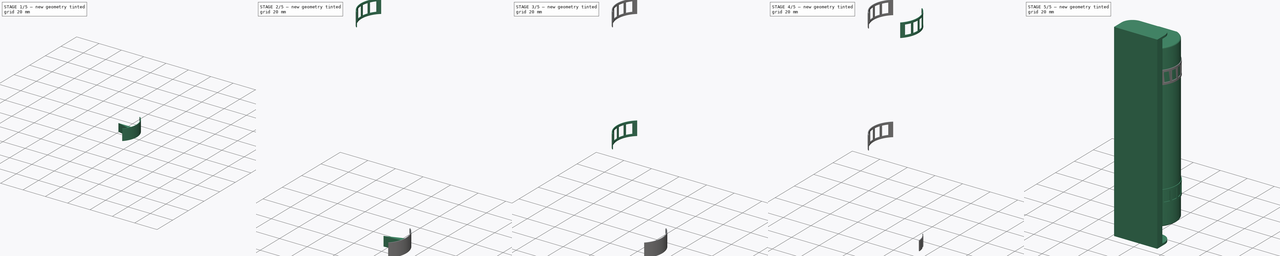
[diagram: build sequence overview — one tinted view per stage of 5, left to right]
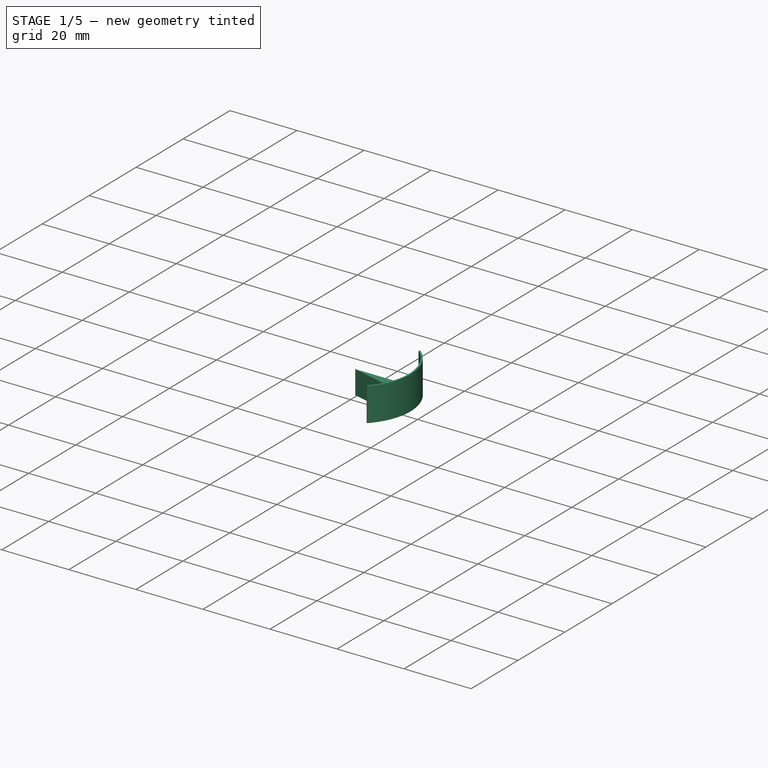
[diagram: stage 1 of 5 — iso view after this stage's code; geometry added in this stage tinted green]
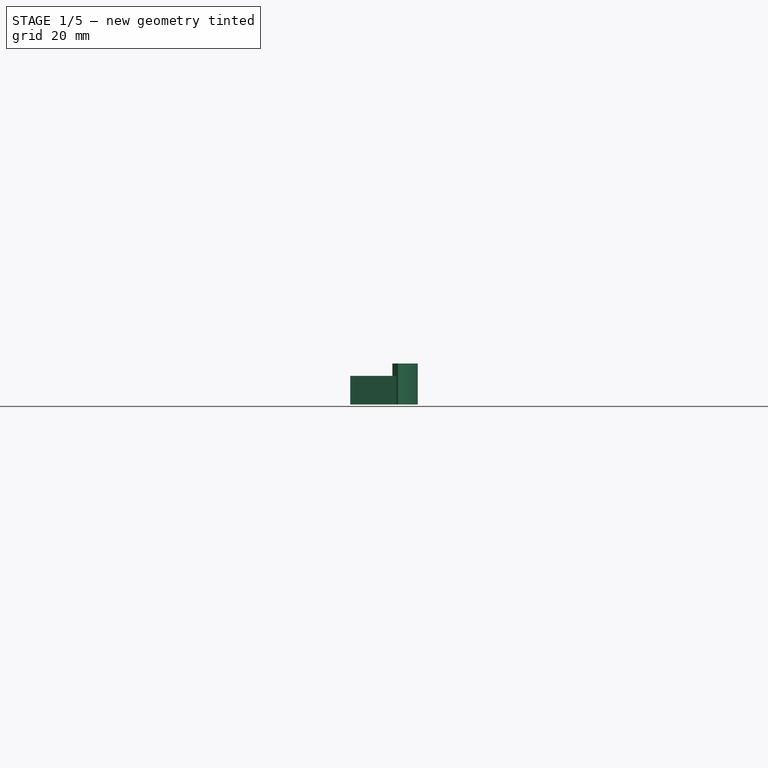
[diagram: stage 1 of 5 — front view after this stage's code; geometry added in this stage tinted green]
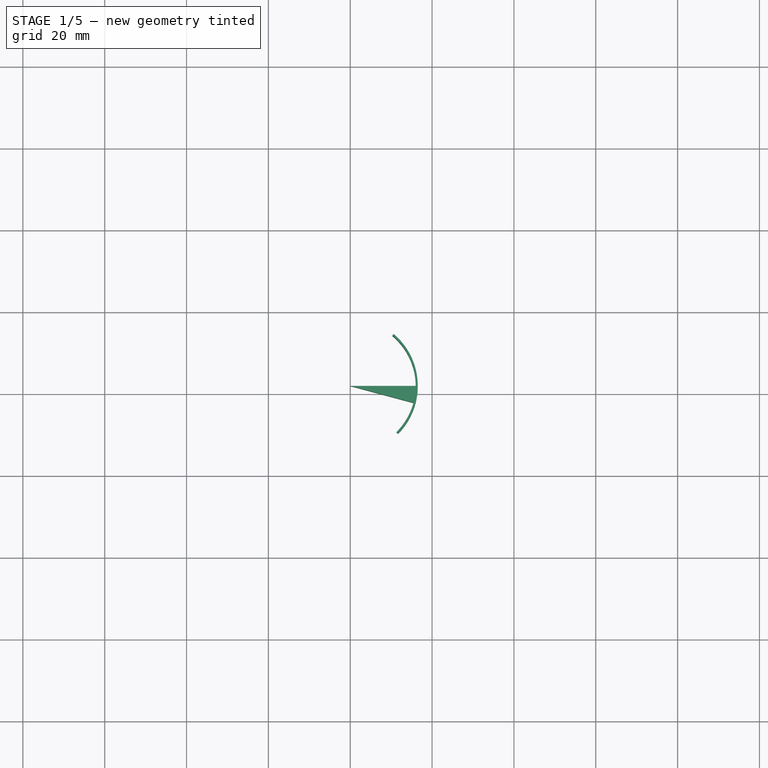
[diagram: stage 1 of 5 — top view after this stage's code; geometry added in this stage tinted green]
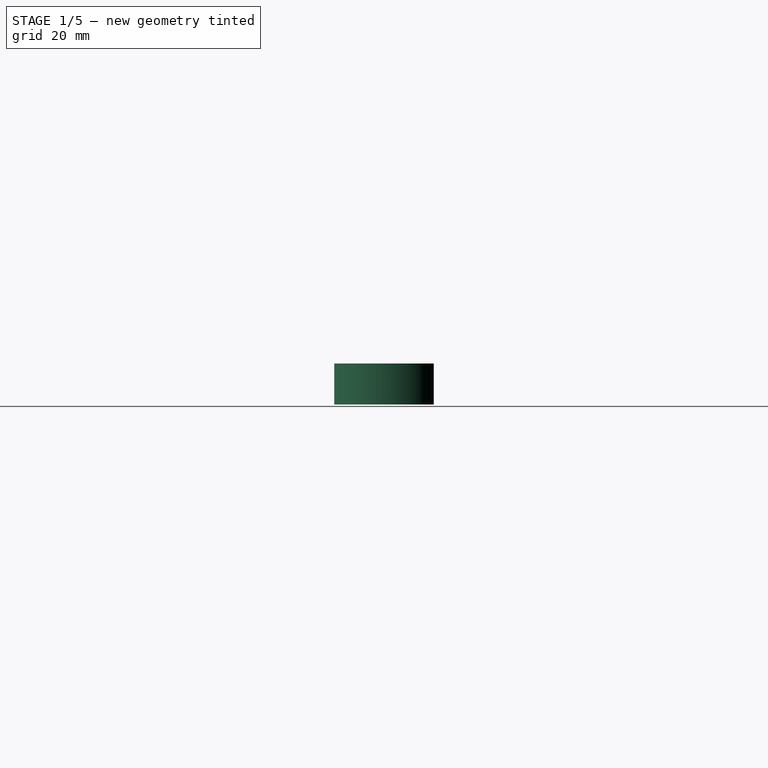
[diagram: stage 1 of 5 — right view after this stage's code; geometry added in this stage tinted green]
FCSTD DOCUMENT  (FreeCAD 0.18R16146 (Git))
Label: oil-tanker v1
License: All rights reserved
LicenseURL: http://en.wikipedia.org/wiki/All_rights_reserved
objects: Part::Cylinder×40, Part::Cut×24, PartDesign::Fillet×10, Sketcher::SketchObject×9, Part::MultiFuse×5, PartDesign::Pad×4, PartDesign::Body×2, PartDesign::FeatureBase×2, PartDesign::Pocket×1, Part::Part2DObjectPython×1, Part::Extrusion×1
note: 104 computed .brp shape members not serialized (recipe doc carries the construction recipe); baked Part::Feature solids carry a one-line shape summary decoded from their .brp

FEATURE [Part::Cylinder] Cylinder030  label="Cylinder-inner015"
  Angle = 95
  AttacherType = Attacher::AttachEngine3D
  Height = 10
  Placement = pos=(0,2,-50) rot=(0,0,-1;0.785398rad)
  Radius = 16
FEATURE [Part::Cylinder] Cylinder031  label="Cylinder-outer015"
  Angle = 15
  AttacherType = Attacher::AttachEngine3D
  Height = 7
  Placement = pos=(0,2,-50) rot=(0,0,1;0.087266rad)
  Radius = 16.5
FEATURE [Part::Cylinder] Cylinder032  label="Cylinder-inner016"
  Angle = 15
  AttacherType = Attacher::AttachEngine3D
  Height = 7
  Placement = pos=(0,2,-50) rot=(0,0,1;0.436332rad)
  Radius = 16
FEATURE [Part::Cylinder] Cylinder033  label="Cylinder-inner017"
  Angle = 15
  AttacherType = Attacher::AttachEngine3D
  Height = 7
  Placement = pos=(0,2,-50) rot=(0,0,1;0.087266rad)
  Radius = 16
FEATURE [Part::Cylinder] Cylinder034  label="Cylinder-outer016"
  Angle = 15
  AttacherType = Attacher::AttachEngine3D
  Height = 7
  Placement = pos=(0,2,-50) rot=(0,0,1;0.436332rad)
  Radius = 16.5
FEATURE [Part::Cylinder] Cylinder035  label="Cylinder-inner018"
  Angle = 15
  AttacherType = Attacher::AttachEngine3D
  Height = 7
  Placement = pos=(0,2,-50) rot=(0,0,-1;0.610865rad)
  Radius = 16
FEATURE [Part::Cylinder] Cylinder036  label="Cylinder-outer017"
  Angle = 15
  AttacherType = Attacher::AttachEngine3D
  Height = 7
  Placement = pos=(0,2,-50) rot=(0,0,-1;0.261799rad)
  Radius = 16.5
FEATURE [Part::Cylinder] Cylinder037  label="Cylinder-outer018"
  Angle = 95
  AttacherType = Attacher::AttachEngine3D
  Height = 10
  Placement = pos=(0,2,-50) rot=(0,0,-1;0.785398rad)
  Radius = 16.5
FEATURE [Part::Cylinder] Cylinder038  label="Cylinder-outer019"
  Angle = 15
  AttacherType = Attacher::AttachEngine3D
  Height = 7
  Placement = pos=(0,2,-50) rot=(0,0,-1;0.610865rad)
  Radius = 16.5
FEATURE [Part::Cylinder] Cylinder039  label="Cylinder-inner019"
  Angle = 15
  AttacherType = Attacher::AttachEngine3D
  Height = 7
  Placement = pos=(0,2,-50) rot=(0,0,-1;0.261799rad)
  Radius = 16
FEATURE [Part::Cut] Cut019  label="Cut-ladder-cut013"
  Base = -> Cylinder038
  Placement = pos=(0,0,1.5) rot=(0,0,1;0rad)
  Tool = -> Cylinder035
FEATURE [Part::Cut] Cut021  label="Cut-ladder-cut014"
  Base = -> Cylinder031
  Placement = pos=(0,0,1.5) rot=(0,0,1;0rad)
  Tool = -> Cylinder033
FEATURE [Part::Cut] Cut022  label="Cut-ladder-cut015"
  Base = -> Cylinder034
  Placement = pos=(0,0,1.5) rot=(0,0,1;0rad)
  Tool = -> Cylinder032
FEATURE [Part::Cut] Cut023  label="Cut-ladder-outer003"
  Base = -> Cylinder037
  Tool = -> Cylinder030
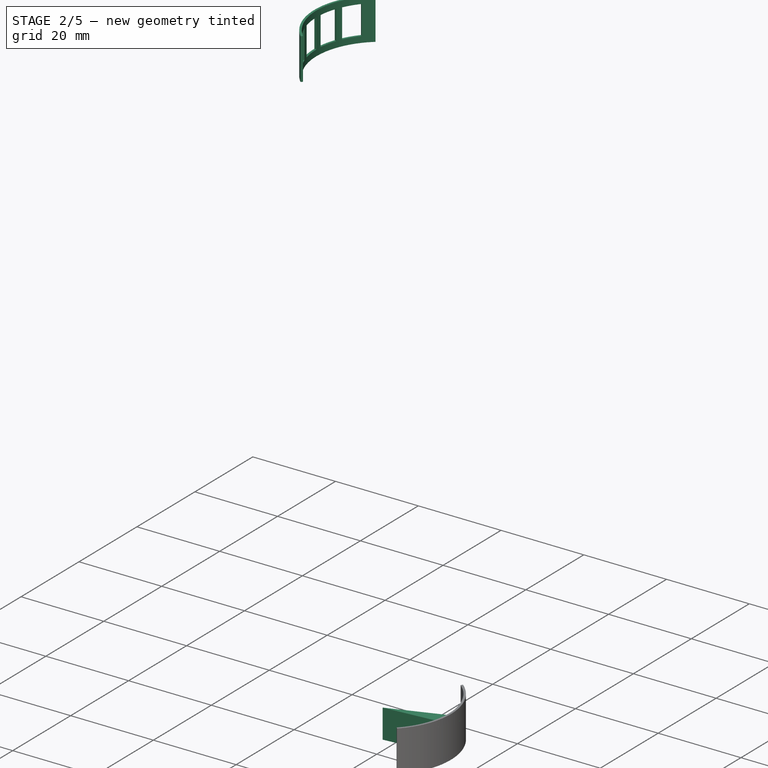
[diagram: stage 2 of 5 — iso view after this stage's code; geometry added in this stage tinted green]
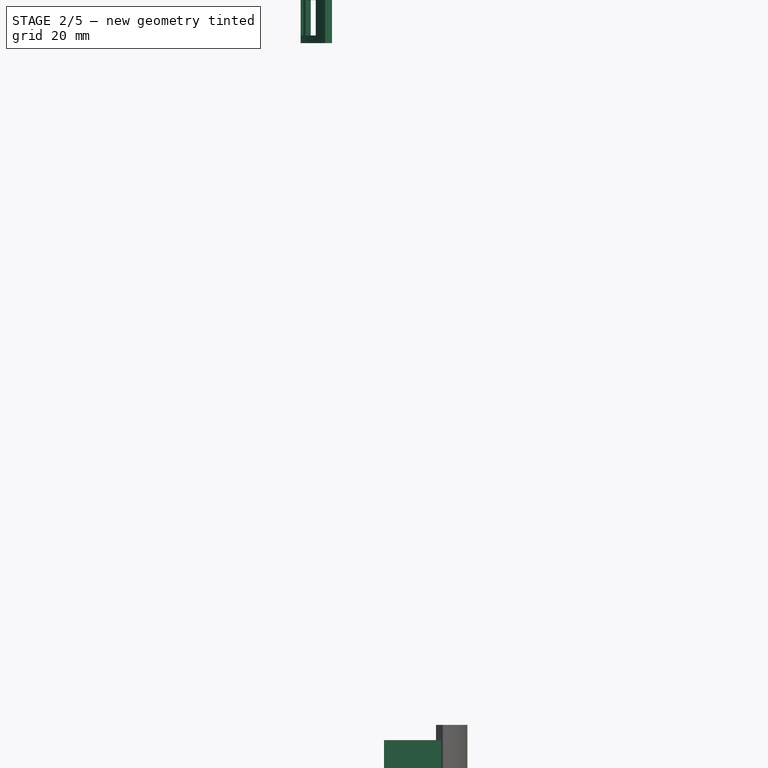
[diagram: stage 2 of 5 — front view after this stage's code; geometry added in this stage tinted green]
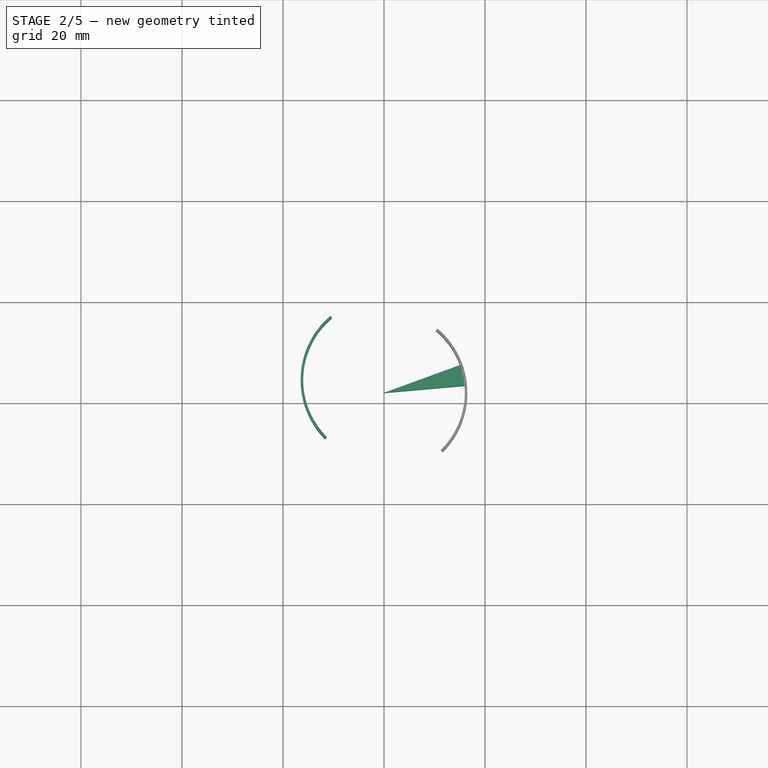
[diagram: stage 2 of 5 — top view after this stage's code; geometry added in this stage tinted green]
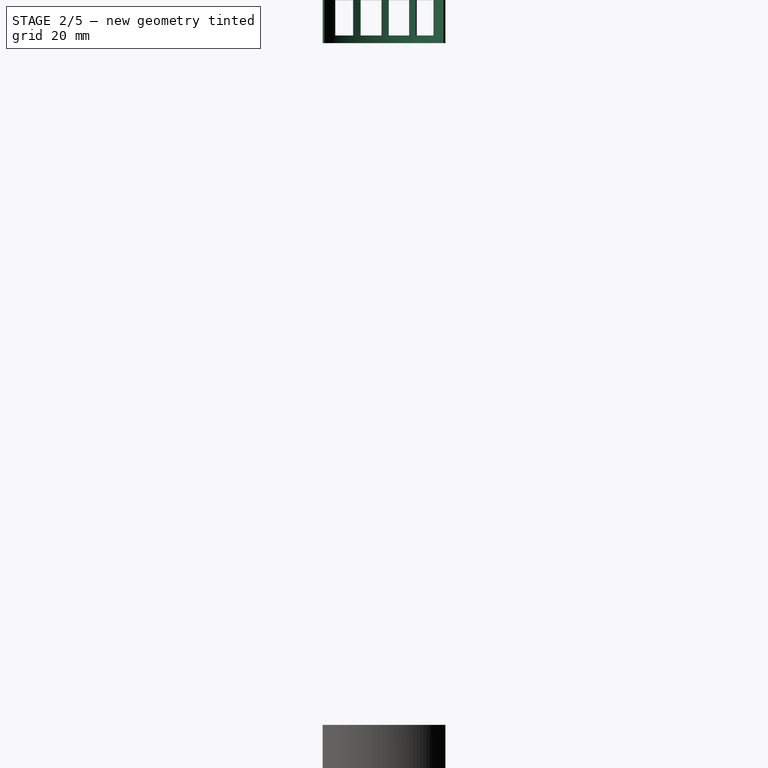
[diagram: stage 2 of 5 — right view after this stage's code; geometry added in this stage tinted green]
FEATURE [Part::Cylinder] Cylinder022  label="Cylinder-inner011"
  Angle = 15
  AttacherType = Attacher::AttachEngine3D
  Height = 7
  Placement = pos=(0,2,-50) rot=(0,0,1;0.087266rad)
  Radius = 16
FEATURE [Part::Cylinder] Cylinder023  label="Cylinder-inner012"
  Angle = 95
  AttacherType = Attacher::AttachEngine3D
  Height = 10
  Placement = pos=(0,2,-50) rot=(0,0,-1;0.785398rad)
  Radius = 16
FEATURE [Part::Cylinder] Cylinder024  label="Cylinder-outer011"
  Angle = 15
  AttacherType = Attacher::AttachEngine3D
  Height = 7
  Placement = pos=(0,2,-50) rot=(0,0,1;0.436332rad)
  Radius = 16.5
FEATURE [Part::Cylinder] Cylinder025  label="Cylinder-inner013"
  Angle = 15
  AttacherType = Attacher::AttachEngine3D
  Height = 7
  Placement = pos=(0,2,-50) rot=(0,0,-1;0.261799rad)
  Radius = 16
FEATURE [Part::Cylinder] Cylinder026  label="Cylinder-outer012"
  Angle = 95
  AttacherType = Attacher::AttachEngine3D
  Height = 10
  Placement = pos=(0,2,-50) rot=(0,0,-1;0.785398rad)
  Radius = 16.5
FEATURE [Part::Cylinder] Cylinder027  label="Cylinder-outer013"
  Angle = 15
  AttacherType = Attacher::AttachEngine3D
  Height = 7
  Placement = pos=(0,2,-50) rot=(0,0,-1;0.261799rad)
  Radius = 16.5
FEATURE [Part::Cylinder] Cylinder028  label="Cylinder-outer014"
  Angle = 15
  AttacherType = Attacher::AttachEngine3D
  Height = 7
  Placement = pos=(0,2,-50) rot=(0,0,1;0.087266rad)
  Radius = 16.5
FEATURE [Part::Cylinder] Cylinder029  label="Cylinder-inner014"
  Angle = 15
  AttacherType = Attacher::AttachEngine3D
  Height = 7
  Placement = pos=(0,2,-50) rot=(0,0,1;0.436332rad)
  Radius = 16
FEATURE [Part::Cut] Cut014  label="Cut-ladder-cut010"
  Base = -> Cylinder024
  Placement = pos=(0,0,1.5) rot=(0,0,1;0rad)
  Tool = -> Cylinder029
FEATURE [Part::Cut] Cut015  label="Cut-ladder-cut011"
  Base = -> Cylinder027
  Placement = pos=(0,0,1.5) rot=(0,0,1;0rad)
  Tool = -> Cylinder025
FEATURE [Part::Cut] Cut016  label="Cut-ladder-outer002"
  Base = -> Cylinder026
  Tool = -> Cylinder023
FEATURE [Part::Cut] Cut018  label="Cut-ladder-cut012"
  Base = -> Cylinder036
  Placement = pos=(0,0,1.5) rot=(0,0,1;0rad)
  Tool = -> Cylinder039
FEATURE [Part::MultiFuse] Fusion003  label="ladder-cut003"
  Shapes = -> [Cut019,Cut018,Cut021,Cut022]
FEATURE [Part::Cut] Cut020  label="ladder-Cut004"
  Base = -> Cut023
  Placement = pos=(0,0,55) rot=(0,1,0;3.14159rad)
  Tool = -> Fusion003
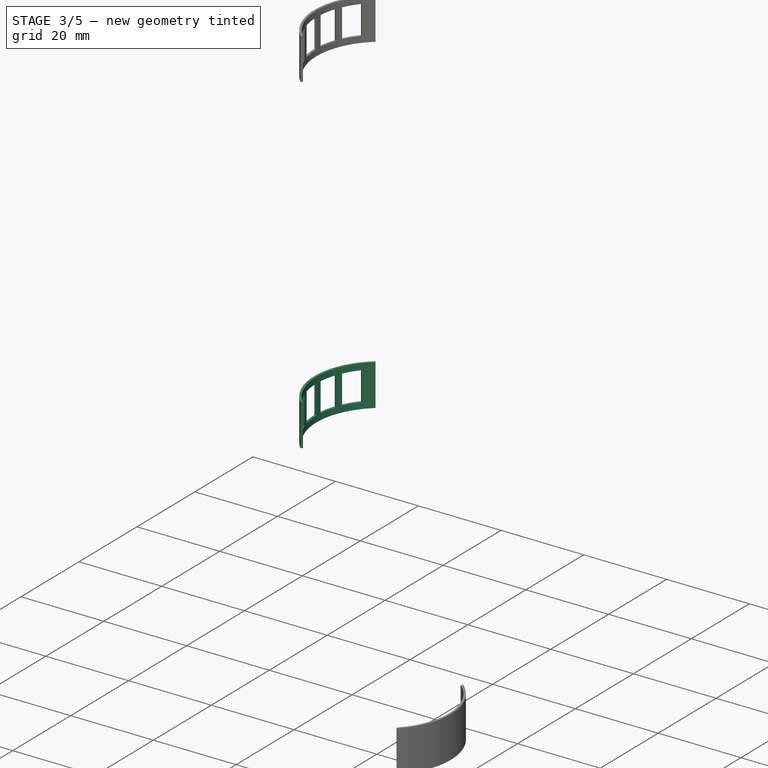
[diagram: stage 3 of 5 — iso view after this stage's code; geometry added in this stage tinted green]
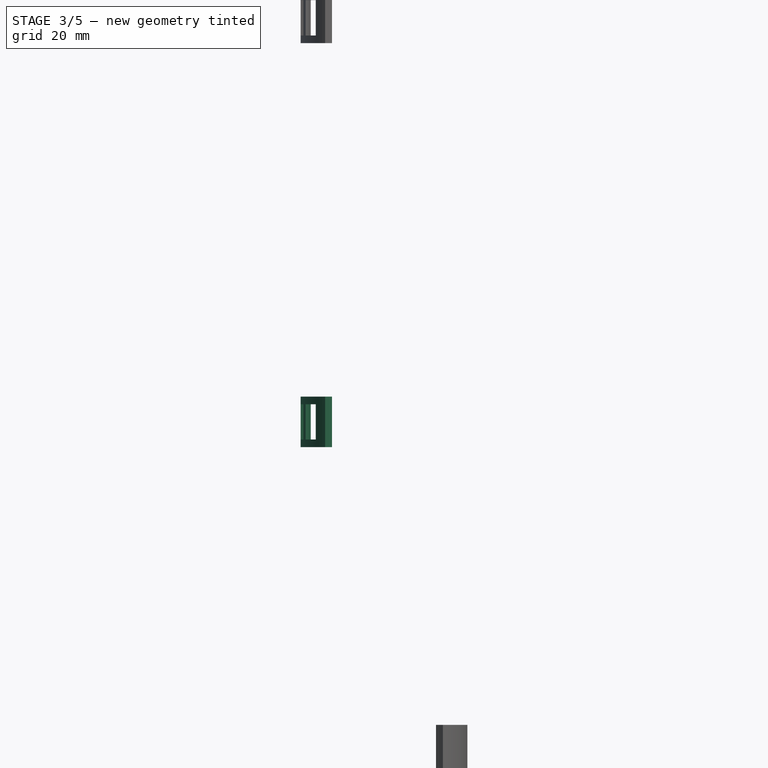
[diagram: stage 3 of 5 — front view after this stage's code; geometry added in this stage tinted green]
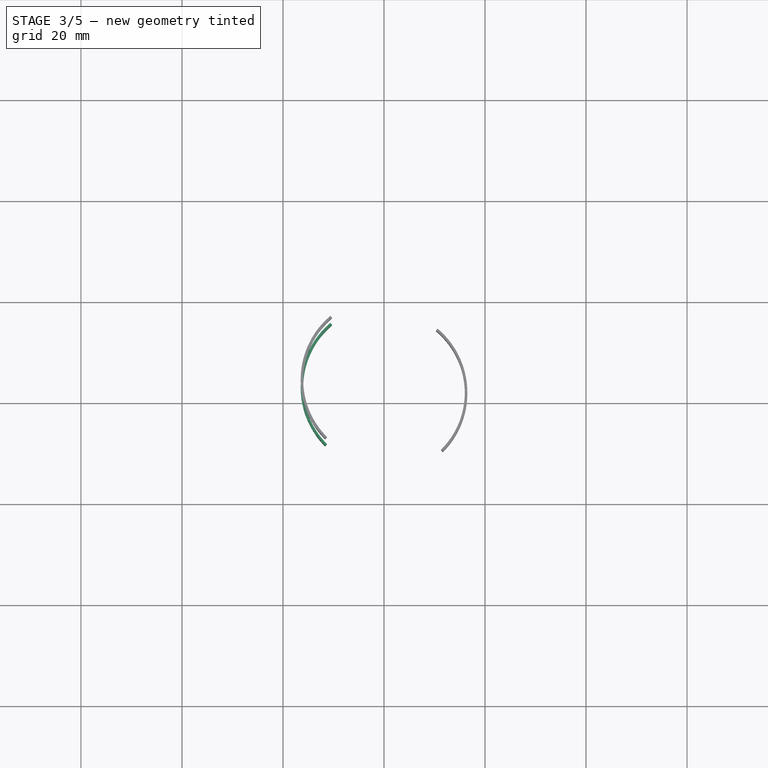
[diagram: stage 3 of 5 — top view after this stage's code; geometry added in this stage tinted green]
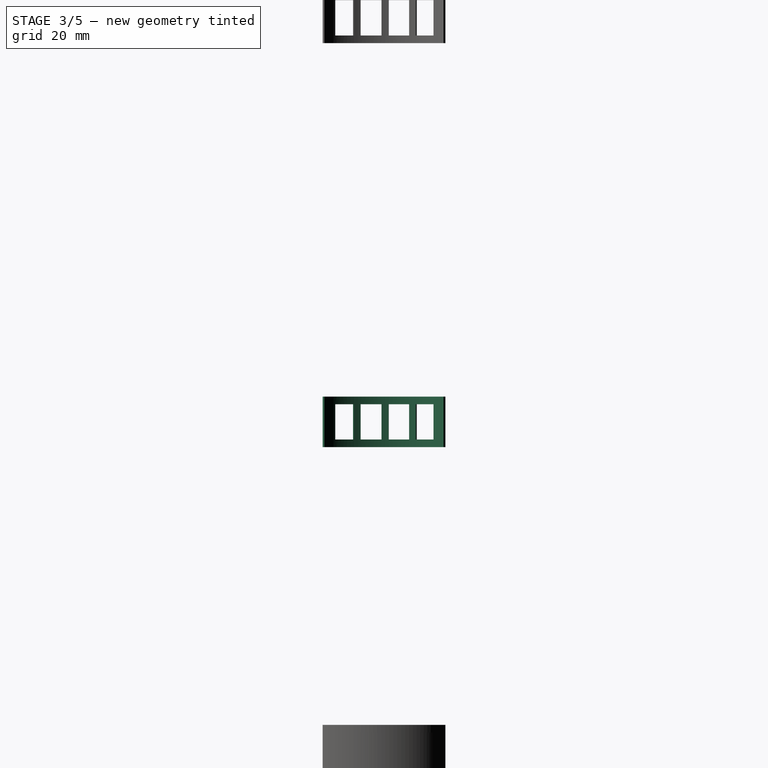
[diagram: stage 3 of 5 — right view after this stage's code; geometry added in this stage tinted green]
FEATURE [Part::Cylinder] Cylinder013  label="Cylinder-inner007"
  Angle = 95
  AttacherType = Attacher::AttachEngine3D
  Height = 10
  Placement = pos=(0,2,-50) rot=(0,0,-1;0.785398rad)
  Radius = 16
FEATURE [Part::Cylinder] Cylinder014  label="Cylinder-outer006"
  Angle = 15
  AttacherType = Attacher::AttachEngine3D
  Height = 7
  Placement = pos=(0,2,-50) rot=(0,0,1;0.436332rad)
  Radius = 16.5
FEATURE [Part::Cylinder] Cylinder015  label="Cylinder-inner008"
  Angle = 15
  AttacherType = Attacher::AttachEngine3D
  Height = 7
  Placement = pos=(0,2,-50) rot=(0,0,-1;0.261799rad)
  Radius = 16
FEATURE [Part::Cylinder] Cylinder016  label="Cylinder-outer007"
  Angle = 95
  AttacherType = Attacher::AttachEngine3D
  Height = 10
  Placement = pos=(0,2,-50) rot=(0,0,-1;0.785398rad)
  Radius = 16.5
FEATURE [Part::Cylinder] Cylinder017  label="Cylinder-outer008"
  Angle = 15
  AttacherType = Attacher::AttachEngine3D
  Height = 7
  Placement = pos=(0,2,-50) rot=(0,0,-1;0.261799rad)
  Radius = 16.5
FEATURE [Part::Cylinder] Cylinder019  label="Cylinder-inner009"
  Angle = 15
  AttacherType = Attacher::AttachEngine3D
  Height = 7
  Placement = pos=(0,2,-50) rot=(0,0,1;0.436332rad)
  Radius = 16
FEATURE [Part::Cut] Cut008  label="Cut-ladder-cut006"
  Base = -> Cylinder014
  Placement = pos=(0,0,1.5) rot=(0,0,1;0rad)
  Tool = -> Cylinder019
FEATURE [Part::Cut] Cut009  label="Cut-ladder-cut007"
  Base = -> Cylinder017
  Placement = pos=(0,0,1.5) rot=(0,0,1;0rad)
  Tool = -> Cylinder015
FEATURE [Part::Cut] Cut010  label="Cut-ladder-outer001"
  Base = -> Cylinder016
  Tool = -> Cylinder013
FEATURE [Part::Cylinder] Cylinder020  label="Cylinder-inner010"
  Angle = 15
  AttacherType = Attacher::AttachEngine3D
  Height = 7
  Placement = pos=(0,2,-50) rot=(0,0,-1;0.610865rad)
  Radius = 16
FEATURE [Part::Cylinder] Cylinder021  label="Cylinder-outer010"
  Angle = 15
  AttacherType = Attacher::AttachEngine3D
  Height = 7
  Placement = pos=(0,2,-50) rot=(0,0,-1;0.610865rad)
  Radius = 16.5
FEATURE [Part::Cut] Cut012  label="Cut-ladder-cut008"
  Base = -> Cylinder021
  Placement = pos=(0,0,1.5) rot=(0,0,1;0rad)
  Tool = -> Cylinder020
FEATURE [Part::Cut] Cut013  label="Cut-ladder-cut009"
  Base = -> Cylinder028
  Placement = pos=(0,0,1.5) rot=(0,0,1;0rad)
  Tool = -> Cylinder022
FEATURE [Part::MultiFuse] Fusion002  label="ladder-cut002"
  Shapes = -> [Cut012,Cut015,Cut013,Cut014]
FEATURE [Part::Cut] Cut017  label="ladder-Cut003"
  Base = -> Cut016
  Placement = pos=(0,0,-25) rot=(0,1,0;3.14159rad)
  Tool = -> Fusion002
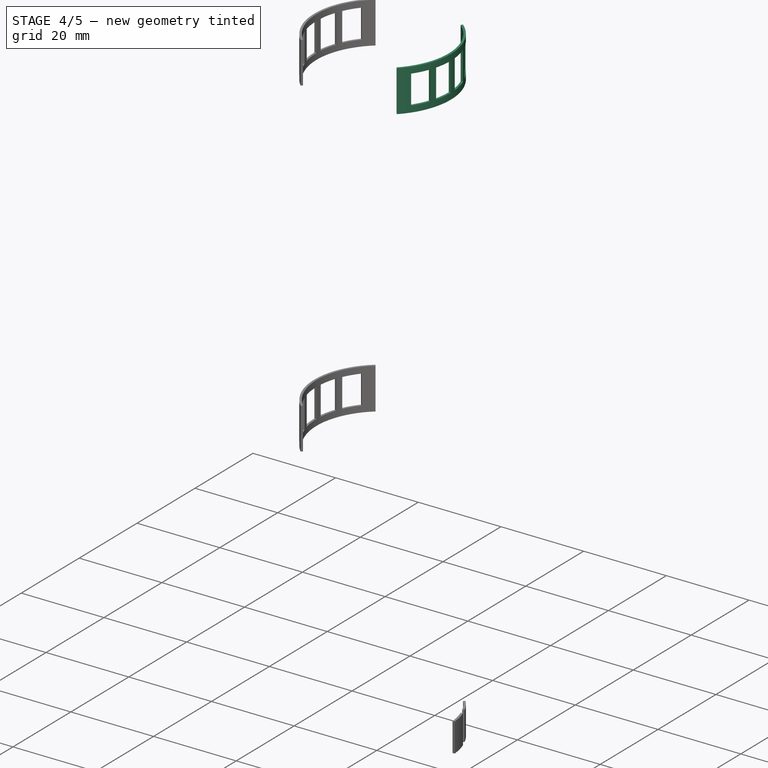
[diagram: stage 4 of 5 — iso view after this stage's code; geometry added in this stage tinted green]
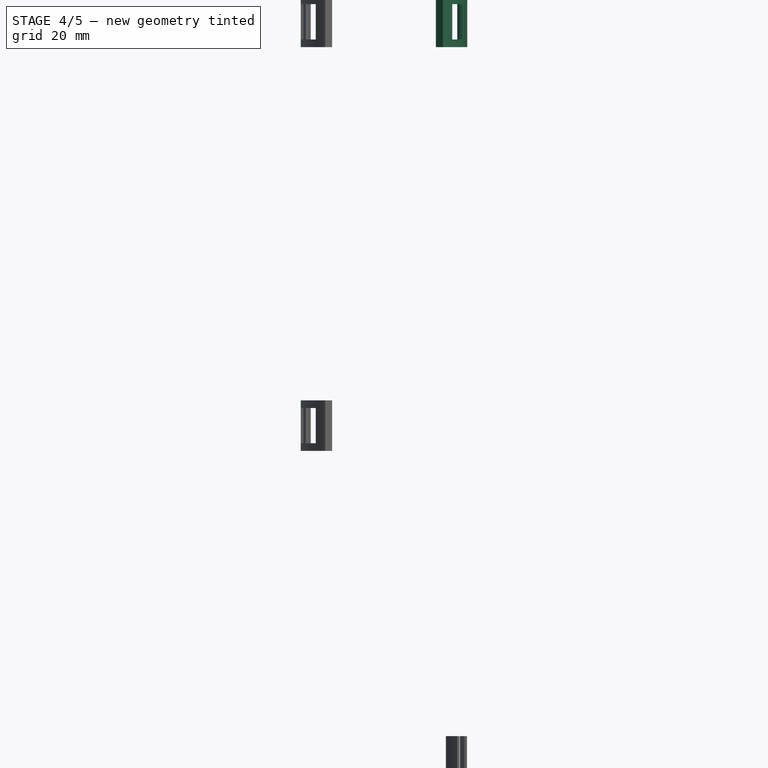
[diagram: stage 4 of 5 — front view after this stage's code; geometry added in this stage tinted green]
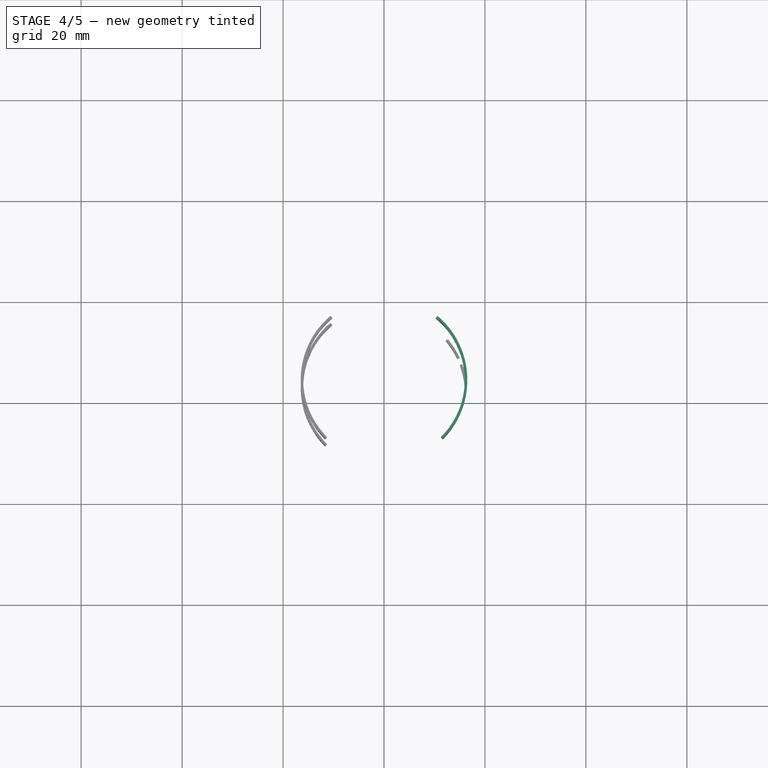
[diagram: stage 4 of 5 — top view after this stage's code; geometry added in this stage tinted green]
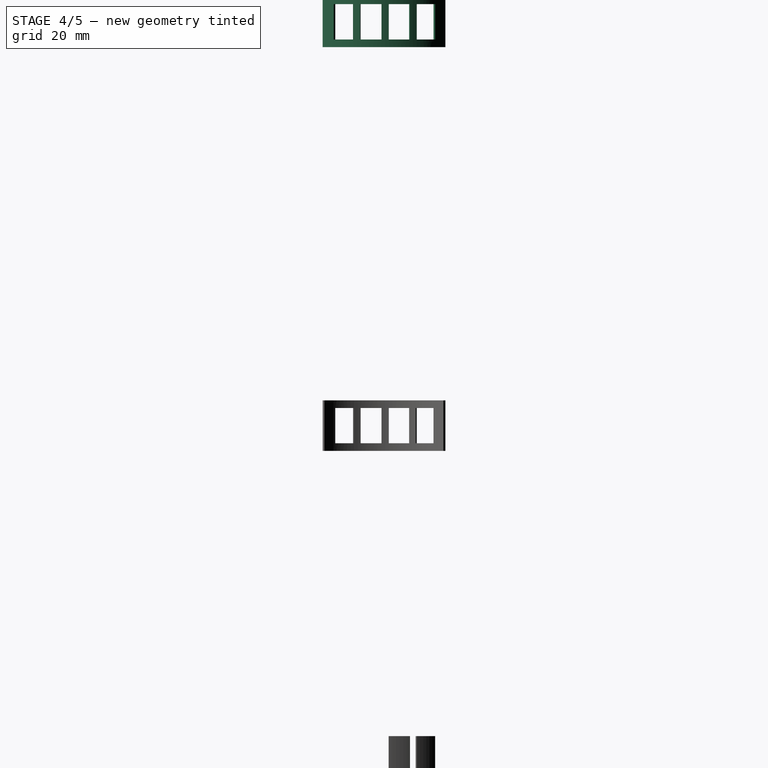
[diagram: stage 4 of 5 — right view after this stage's code; geometry added in this stage tinted green]
FEATURE [Part::Cylinder] Cylinder006  label="Cylinder-inner003"
  Angle = 15
  AttacherType = Attacher::AttachEngine3D
  Height = 7
  Placement = pos=(0,2,-50) rot=(0,0,-1;-0.087266rad)
  Radius = 16
FEATURE [Part::Cylinder] Cylinder007  label="Cylinder-outer003"
  Angle = 15
  AttacherType = Attacher::AttachEngine3D
  Height = 7
  Placement = pos=(0,2,-50) rot=(0,0,-1;-0.087266rad)
  Radius = 16.5
FEATURE [Part::Cut] Cut003  label="Cut-ladder-cut002"
  Base = -> Cylinder007
  Placement = pos=(0,0,1.5) rot=(0,0,1;0rad)
  Tool = -> Cylinder006
FEATURE [Part::Cylinder] Cylinder008  label="Cylinder-inner004"
  Angle = 15
  AttacherType = Attacher::AttachEngine3D
  Height = 7
  Placement = pos=(0,2,-50) rot=(0,0,1;0.436332rad)
  Radius = 16
FEATURE [Part::Cylinder] Cylinder009  label="Cylinder-outer004"
  Angle = 15
  AttacherType = Attacher::AttachEngine3D
  Height = 7
  Placement = pos=(0,2,-50) rot=(0,0,1;0.436332rad)
  Radius = 16.5
FEATURE [Part::Cut] Cut004  label="Cut-ladder-cut003"
  Base = -> Cylinder009
  Placement = pos=(0,0,1.5) rot=(0,0,1;0rad)
  Tool = -> Cylinder008
FEATURE [Part::Cylinder] Cylinder010  label="Cylinder-inner005"
  Angle = 15
  AttacherType = Attacher::AttachEngine3D
  Height = 7
  Placement = pos=(0,2,-50) rot=(0,0,-1;0.610865rad)
  Radius = 16
FEATURE [Part::Cylinder] Cylinder011  label="Cylinder-outer005"
  Angle = 15
  AttacherType = Attacher::AttachEngine3D
  Height = 7
  Placement = pos=(0,2,-50) rot=(0,0,-1;0.610865rad)
  Radius = 16.5
FEATURE [Part::Cylinder] Cylinder012  label="Cylinder-inner006"
  Angle = 15
  AttacherType = Attacher::AttachEngine3D
  Height = 7
  Placement = pos=(0,2,-50) rot=(0,0,1;0.087266rad)
  Radius = 16
FEATURE [Part::Cylinder] Cylinder018  label="Cylinder-outer009"
  Angle = 15
  AttacherType = Attacher::AttachEngine3D
  Height = 7
  Placement = pos=(0,2,-50) rot=(0,0,1;0.087266rad)
  Radius = 16.5
FEATURE [Part::Cut] Cut006  label="Cut-ladder-cut004"
  Base = -> Cylinder011
  Placement = pos=(0,0,1.5) rot=(0,0,1;0rad)
  Tool = -> Cylinder010
FEATURE [Part::Cut] Cut007  label="Cut-ladder-cut005"
  Base = -> Cylinder018
  Placement = pos=(0,0,1.5) rot=(0,0,1;0rad)
  Tool = -> Cylinder012
FEATURE [Part::MultiFuse] Fusion001  label="ladder-cut001"
  Shapes = -> [Cut006,Cut009,Cut007,Cut008]
FEATURE [Part::Cut] Cut011  label="ladder-Cut002"
  Base = -> Cut010
  Placement = pos=(0,0,145) rot=(0,0,1;0rad)
  Tool = -> Fusion001
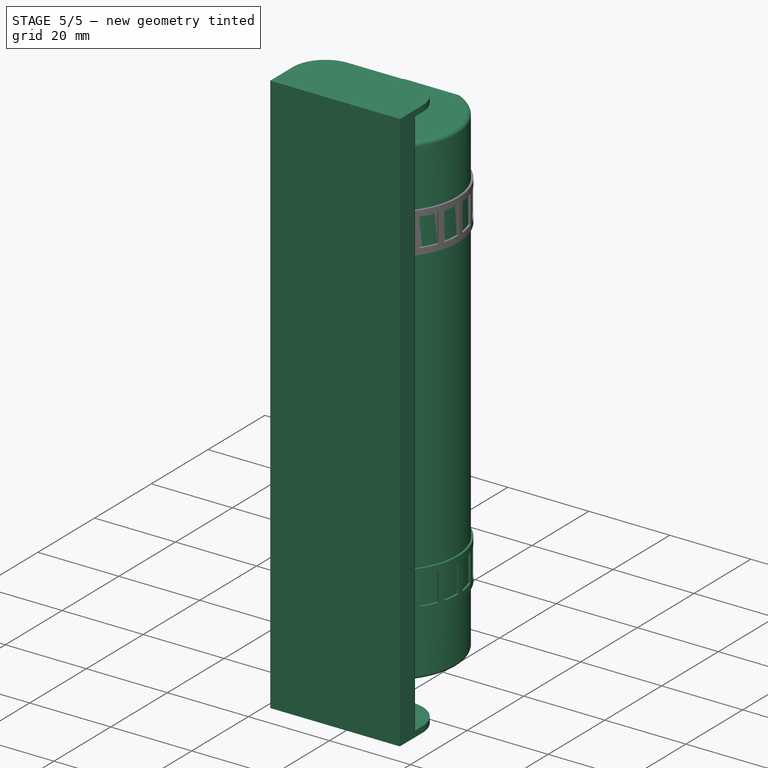
[diagram: stage 5 of 5 — iso view after this stage's code; geometry added in this stage tinted green]
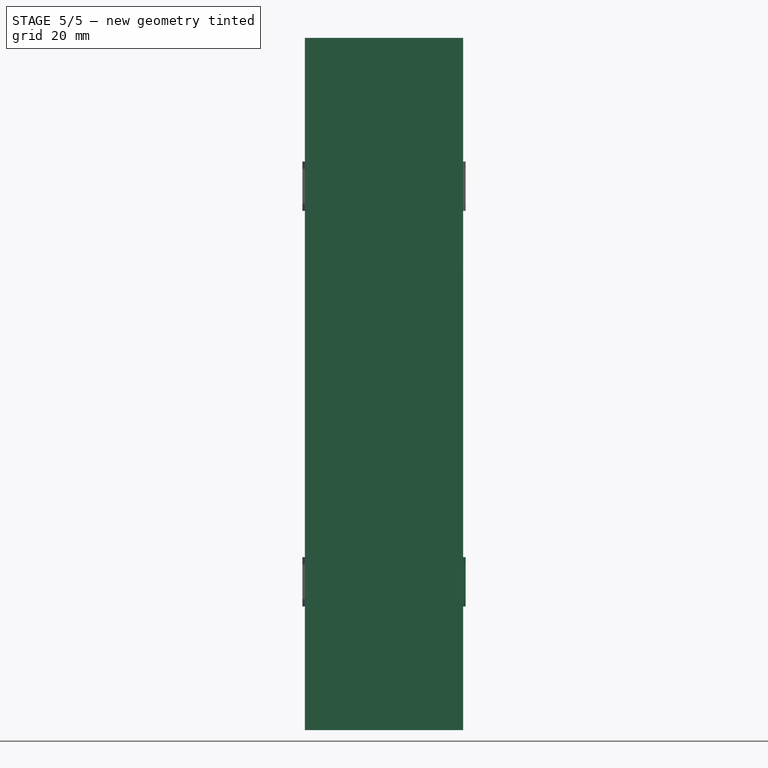
[diagram: stage 5 of 5 — front view after this stage's code; geometry added in this stage tinted green]
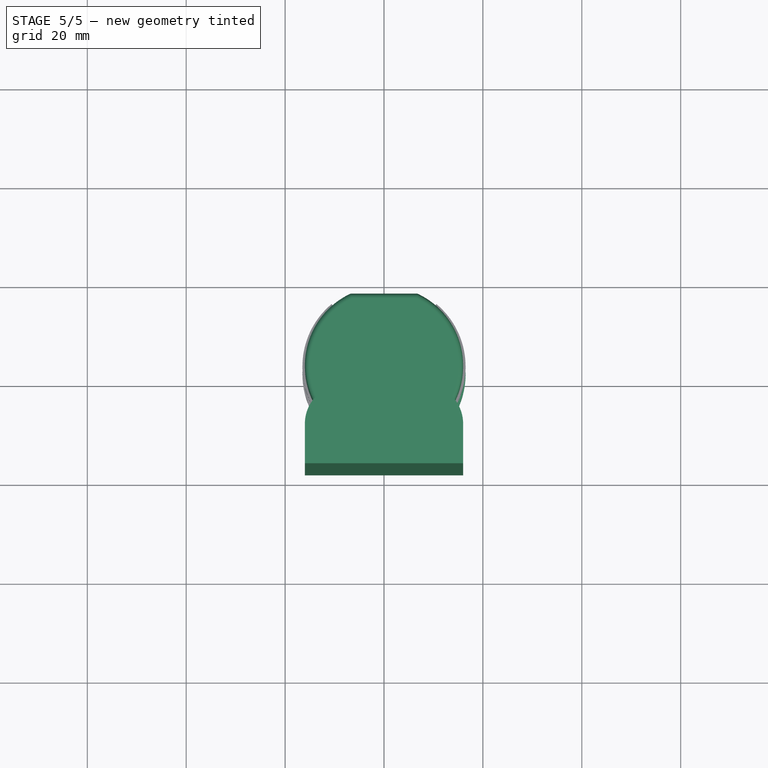
[diagram: stage 5 of 5 — top view after this stage's code; geometry added in this stage tinted green]
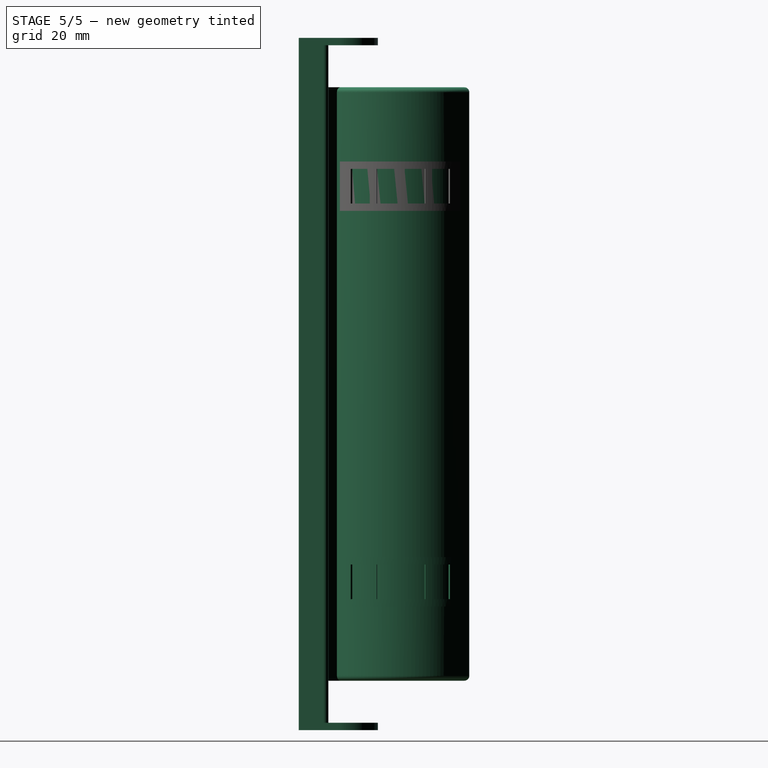
[diagram: stage 5 of 5 — right view after this stage's code; geometry added in this stage tinted green]
FEATURE [Sketcher::SketchObject] Sketch  label="Sketch-train-front-face"
  MapMode = 5
  Support = -> [XY_Plane]
  sketch-geometry (19):
    g0: LineSegment [constr] StartX=-16 StartY=18 StartZ=0 EndX=16 EndY=18 EndZ=0
    g1: LineSegment [constr] StartX=16 StartY=18 StartZ=0 EndX=16 EndY=-18 EndZ=0
    g2: LineSegment [constr] StartX=16 StartY=-18 StartZ=0 EndX=-16 EndY=-18 EndZ=0
    g3: LineSegment [constr] StartX=-16 StartY=-18 StartZ=0 EndX=-16 EndY=18 EndZ=0
    g4: LineSegment [constr] StartX=0 StartY=0 StartZ=0 EndX=0 EndY=-18 EndZ=0
    g5: LineSegment [constr] StartX=0 StartY=0 StartZ=0 EndX=16 EndY=0 EndZ=0
    g6: LineSegment [constr] StartX=0 StartY=0 StartZ=0 EndX=-16 EndY=0 EndZ=0
    g7: LineSegment [constr] StartX=0 StartY=0 StartZ=0 EndX=0 EndY=18 EndZ=0
    g8: ArcOfCircle CenterX=0 CenterY=2 CenterZ=0 NormalX=0 NormalY=0 NormalZ=1 AngleXU=0 Radius=16 StartAngle=5.40928 EndAngle=7.41775
    g9: LineSegment StartX=-16 StartY=-12 StartZ=0 EndX=-12 EndY=-12 EndZ=0
    g10: LineSegment StartX=16 StartY=-12 StartZ=0 EndX=16 EndY=-18 EndZ=0
    g11: LineSegment StartX=16 StartY=-18 StartZ=0 EndX=-16 EndY=-18 EndZ=0
    g12: LineSegment StartX=-16 StartY=-18 StartZ=0 EndX=-16 EndY=-12 EndZ=0
    g13: LineSegment StartX=12 StartY=-12 StartZ=0 EndX=16 EndY=-12 EndZ=0
    g14: LineSegment StartX=-6.76047 StartY=16.5016 StartZ=0 EndX=6.76047 EndY=16.5016 EndZ=0
    g15: ArcOfCircle CenterX=0 CenterY=2 CenterZ=0 NormalX=0 NormalY=0 NormalZ=1 AngleXU=0 Radius=16 StartAngle=2.00703 EndAngle=4.01549
    g16: GeomPoint X=-12 Y=-12 Z=0
    g17: LineSegment StartX=-10.2694 StartY=-10.2694 StartZ=0 EndX=-12 EndY=-12 EndZ=0
    g18: LineSegment StartX=10.2694 StartY=-10.2694 StartZ=0 EndX=12 EndY=-12 EndZ=0
  constraints (52):
    c: Coincident(g0,g1)
    c: Coincident(g1,g2)
    c: Coincident(g2,g3)
    c: Coincident(g3,g0)
    c: Symmetric(g0,g0,g-2)
    c: DistanceX(g0,g0) = 32
    c: DistanceY(g3,g3) = 36
    c: Symmetric(g0,g2,g-1)
    c: Symmetric(g2,g1,g-2)
    c: Coincident(g4,g5)
    c: Coincident(g4,g7)
    c: Coincident(g4,g6)
    c: Coincident(g4,g-1)
    c: Vertical(g4)
    c: Vertical(g7)
    c: Horizontal(g5)
    c: Horizontal(g6)
    c: DistanceY(g7,g7) = 18
    c: Equal(g7,g4)
    c: DistanceX(g5,g5) = 16
    c: Equal(g6,g5)
    c: Radius(g8) = 16
    c: PointOnObject(g8,g7)
    c: DistanceY(g-1,g8) = 2
    c: Coincident(g13,g10)
    c: Coincident(g10,g11)
    c: Coincident(g11,g12)
    c: Coincident(g12,g9)
    c: Horizontal(g9)
    c: Vertical(g10)
    c: Vertical(g12)
    c: Coincident(g10,g1)
    c: Coincident(g11,g2)
    c: DistanceY(g10,g10) = 6
    c: Tangent(g9,g13)
    c: Equal(g8,g15)
    c: Coincident(g8,g15)
    c: Coincident(g14,g8)
    c: Coincident(g14,g15)
    c: PointOnObject(g16,g9)
    c: DistanceX(g9,g16) = 4
    c: Coincident(g16,g17)
    c: Angle(g9,g17) = 0.785398
    c: DistanceX(g18,g10) = 4
    c: Coincident(g15,g17)
    c: PointOnObject(g9,g17)
    c: Coincident(g8,g18)
    c: PointOnObject(g13,g18)
    c: Angle(g13,g18) = 2.35619
    c: Equal(g17,g18)
    c: Distance(g8,g8) = 27
    c: Distance(g14,g15) = 27
FEATURE [Part::Cylinder] Cylinder  label="Cylinder-inner"
  Angle = 95
  AttacherType = Attacher::AttachEngine3D
  Height = 10
  Placement = pos=(0,2,-50) rot=(0,0,1;-0.785398rad)
  Radius = 16
FEATURE [Part::Cylinder] Cylinder001  label="Cylinder-outer"
  Angle = 95
  AttacherType = Attacher::AttachEngine3D
  Height = 10
  Placement = pos=(0,2,-50) rot=(0,0,1;-0.785398rad)
  Radius = 16.5
FEATURE [Part::Cut] Cut  label="Cut-ladder-outer"
  Base = -> Cylinder001
  Tool = -> Cylinder
FEATURE [Part::Cylinder] Cylinder002  label="Cylinder-inner001"
  Angle = 15
  AttacherType = Attacher::AttachEngine3D
  Height = 7
  Placement = pos=(0,2,-50) rot=(0,0,-1;0.610865rad)
  Radius = 16
FEATURE [Part::Cylinder] Cylinder003  label="Cylinder-outer001"
  Angle = 15
  AttacherType = Attacher::AttachEngine3D
  Height = 7
  Placement = pos=(0,2,-50) rot=(0,0,-1;0.610865rad)
  Radius = 16.5
FEATURE [Part::Cut] Cut001  label="Cut-ladder-cut"
  Base = -> Cylinder003
  Placement = pos=(0,0,1.5) rot=(0,0,1;0rad)
  Tool = -> Cylinder002
FEATURE [Part::Cylinder] Cylinder004  label="Cylinder-inner002"
  Angle = 15
  AttacherType = Attacher::AttachEngine3D
  Height = 7
  Placement = pos=(0,2,-50) rot=(0,0,-1;0.261799rad)
  Radius = 16
FEATURE [Part::Cylinder] Cylinder005  label="Cylinder-outer002"
  Angle = 15
  AttacherType = Attacher::AttachEngine3D
  Height = 7
  Placement = pos=(0,2,-50) rot=(0,0,-1;0.261799rad)
  Radius = 16.5
FEATURE [Part::Cut] Cut002  label="Cut-ladder-cut001"
  Base = -> Cylinder005
  Placement = pos=(0,0,1.5) rot=(0,0,1;0rad)
  Tool = -> Cylinder004
FEATURE [Part::MultiFuse] Fusion  label="ladder-cut"
  Shapes = -> [Cut001,Cut002,Cut003,Cut004]
FEATURE [Part::Cut] Cut005  label="ladder-Cut001"
  Base = -> Cut
  Placement = pos=(0,0,65) rot=(0,0,1;0rad)
  Tool = -> Fusion
FEATURE [PartDesign::Body] Body
  BaseFeature = -> Extrude
  Group = -> [BaseFeature,Sketch,Pad,Sketch001,Sketch002,Pad001,Pad002,Sketch003,Pad003,Sketch004,Fillet,Fillet001,Fillet002,Fillet003,Sketch005,Pocket,Fillet004,Fillet005,Fillet006,Fillet007,Fillet008,Fillet009,Sketch006,Sketch007,Sketch008]
  Origin = -> Origin
  Tip = -> Fillet009
FEATURE [PartDesign::Pad] Pad  label="Pad-main-body"
  BaseFeature = -> BaseFeature
  Length = 120
  Length2 = 100
  Profile = -> Sketch
  Type = 0
FEATURE [Sketcher::SketchObject] Sketch001  label="Sketch001-front-bottom-plate"
  ExternalGeometry = -> [Pad]
  MapMode = 5
  Placement = pos=(0,0,0) rot=(1,0,0;3.14159rad)
  Support = -> [Pad]
  sketch-geometry (4):
    g0: LineSegment StartX=-16 StartY=18 StartZ=0 EndX=16 EndY=18 EndZ=0
    g1: LineSegment StartX=16 StartY=18 StartZ=0 EndX=16 EndY=12 EndZ=0
    g2: LineSegment StartX=16 StartY=12 StartZ=0 EndX=-16 EndY=12 EndZ=0
    g3: LineSegment StartX=-16 StartY=12 StartZ=0 EndX=-16 EndY=18 EndZ=0
  constraints (8):
    c: Coincident(g0,g1)
    c: Coincident(g1,g2)
    c: Coincident(g2,g3)
    c: Coincident(g3,g0)
    c: Coincident(g0,g-3)
    c: Coincident(g1,g-4)
    c: Coincident(g2,g-5)
    c: Coincident(g0,g-6)
FEATURE [Sketcher::SketchObject] Sketch002  label="Sketch002-reverse-bottom-plate"
  ExternalGeometry = -> [Pad]
  MapMode = 5
  Placement = pos=(0,0,120) rot=(0,0,1;0rad)
  Support = -> [Pad]
  sketch-geometry (4):
    g0: LineSegment StartX=-16 StartY=-12 StartZ=0 EndX=16 EndY=-12 EndZ=0
    g1: LineSegment StartX=16 StartY=-12 StartZ=0 EndX=16 EndY=-18 EndZ=0
    g2: LineSegment StartX=16 StartY=-18 StartZ=0 EndX=-16 EndY=-18 EndZ=0
    g3: LineSegment StartX=-16 StartY=-18 StartZ=0 EndX=-16 EndY=-12 EndZ=0
  constraints (8):
    c: Coincident(g0,g1)
    c: Coincident(g1,g2)
    c: Coincident(g2,g3)
    c: Coincident(g3,g0)
    c: Coincident(g0,g-6)
    c: Coincident(g2,g-5)
    c: Coincident(g0,g-3)
    c: Coincident(g1,g-4)
FEATURE [PartDesign::Pad] Pad001  label="Pad001-front-ledge"
  BaseFeature = -> Pad
  Length = 15
  Length2 = 100
  Profile = -> Sketch001
  Type = 0
FEATURE [PartDesign::Pad] Pad002  label="Pad002-back-ledge"
  BaseFeature = -> Pad001
  Length = 15
  Length2 = 100
  Profile = -> Sketch002
  Type = 0
FEATURE [Sketcher::SketchObject] Sketch003
  ExternalGeometry = -> [Pad002]
  MapMode = 5
  Placement = pos=(0,-12,0) rot=(0,0.707107,0.707107;3.14159rad)
  Support = -> [Pad002]
  sketch-geometry (8):
    g0: LineSegment StartX=-16 StartY=135 StartZ=0 EndX=16 EndY=135 EndZ=0
    g1: LineSegment StartX=16 StartY=135 StartZ=0 EndX=16 EndY=133.5 EndZ=0
    g2: LineSegment StartX=16 StartY=133.5 StartZ=0 EndX=-16 EndY=133.5 EndZ=0
    g3: LineSegment StartX=-16 StartY=133.5 StartZ=0 EndX=-16 EndY=135 EndZ=0
    g4: LineSegment StartX=-16 StartY=-13.5 StartZ=0 EndX=16 EndY=-13.5 EndZ=0
    g5: LineSegment StartX=16 StartY=-13.5 StartZ=0 EndX=16 EndY=-15 EndZ=0
    g6: LineSegment StartX=16 StartY=-15 StartZ=0 EndX=-16 EndY=-15 EndZ=0
    g7: LineSegment StartX=-16 StartY=-15 StartZ=0 EndX=-16 EndY=-13.5 EndZ=0
  constraints (20):
    c: Coincident(g0,g1)
    c: Coincident(g1,g2)
    c: Coincident(g2,g3)
    c: Coincident(g3,g0)
    c: Horizontal(g2)
    c: Vertical(g1)
    c: DistanceY(g1,g1) = 1.5
    c: Equal(g0,g2)
    c: Coincident(g4,g5)
    c: Coincident(g5,g6)
    c: Coincident(g6,g7)
    c: Coincident(g7,g4)
    c: Vertical(g5)
    c: Vertical(g7)
    c: DistanceY(g5,g5) = 1.5
    c: Equal(g7,g5)
    c: Symmetric(g4,g4,g-2)
    c: Coincident(g5,g-5)
    c: Coincident(g0,g-3)
    c: Coincident(g0,g-4)
FEATURE [PartDesign::Pad] Pad003  label="Pad003-ledge"
  BaseFeature = -> Pad002
  Length = 10
  Length2 = 100
  Profile = -> Sketch003
  Type = 0
FEATURE [Sketcher::SketchObject] Sketch004
  MapMode = 5
  Placement = pos=(0,-2.2e-15,-10) rot=(1,0,0;3.14159rad)
  Support = -> [Pad003]
FEATURE [PartDesign::Fillet] Fillet
  Base = -> Pad003 [Edge69]
  BaseFeature = -> Pad003
  Radius = 8
FEATURE [PartDesign::Fillet] Fillet001
  Base = -> Fillet [Edge17]
  BaseFeature = -> Fillet
  Radius = 8
FEATURE [PartDesign::Fillet] Fillet002
  Base = -> Fillet001 [Edge72]
  BaseFeature = -> Fillet001
  Radius = 8
FEATURE [PartDesign::Fillet] Fillet003
  Base = -> Fillet002 [Edge16]
  BaseFeature = -> Fillet002
  Radius = 8
FEATURE [Sketcher::SketchObject] Sketch005  label="Sketch005-Fuel-cap"
  MapMode = 5
  Placement = pos=(0,16.5016,0) rot=(0,0.707107,0.707107;3.14159rad)
  Support = -> [Fillet003]
  sketch-geometry (10):
    g0: Circle CenterX=0 CenterY=20 CenterZ=0 NormalX=0 NormalY=0 NormalZ=1 AngleXU=0 Radius=2.5
    g1: Circle CenterX=0 CenterY=20 CenterZ=0 NormalX=0 NormalY=0 NormalZ=1 AngleXU=0 Radius=1.5
    g2: Circle CenterX=0 CenterY=40 CenterZ=0 NormalX=0 NormalY=0 NormalZ=1 AngleXU=0 Radius=1.5
    g3: Circle CenterX=0 CenterY=40 CenterZ=0 NormalX=0 NormalY=0 NormalZ=1 AngleXU=0 Radius=2.5
    g4: Circle CenterX=0 CenterY=60 CenterZ=0 NormalX=0 NormalY=0 NormalZ=1 AngleXU=0 Radius=1.5
    g5: Circle CenterX=0 CenterY=60 CenterZ=0 NormalX=0 NormalY=0 NormalZ=1 AngleXU=0 Radius=2.5
    g6: Circle CenterX=0 CenterY=80 CenterZ=0 NormalX=0 NormalY=0 NormalZ=1 AngleXU=0 Radius=1.5
    g7: Circle CenterX=0 CenterY=80 CenterZ=0 NormalX=0 NormalY=0 NormalZ=1 AngleXU=0 Radius=2.5
    g8: Circle CenterX=0 CenterY=100 CenterZ=0 NormalX=0 NormalY=0 NormalZ=1 AngleXU=0 Radius=1.5
    g9: Circle CenterX=0 CenterY=100 CenterZ=0 NormalX=0 NormalY=0 NormalZ=1 AngleXU=0 Radius=2.5
  constraints (25):
    c: Radius(g0) = 2.5
    c: PointOnObject(g0,g-2)
    c: DistanceY(g-1,g0) = 20
    c: Radius(g1) = 1.5
    c: Coincident(g0,g1)
    c: Equal(g0,g3) = 2.5
    c: Equal(g1,g2) = 1.5
    c: Coincident(g3,g2)
    c: Equal(g0,g5) = 2.5
    c: Equal(g1,g4) = 1.5
    c: Coincident(g5,g4)
    c: Equal(g0,g7) = 2.5
    c: Equal(g1,g6) = 1.5
    c: Coincident(g7,g6)
    c: Equal(g0,g9) = 2.5
    c: Equal(g1,g8) = 1.5
    c: Coincident(g9,g8)
    c: PointOnObject(g8,g-2)
    c: PointOnObject(g6,g-2)
    c: PointOnObject(g4,g-2)
    c: PointOnObject(g2,g-2)
    c: DistanceY(g-1,g2) = 40
    c: DistanceY(g-1,g4) = 60
    c: DistanceY(g-1,g6) = 80
    c: DistanceY(g-1,g8) = 100
FEATURE [PartDesign::Pocket] Pocket
  BaseFeature = -> Fillet003
  Length = 8
  Length2 = 100
  Profile = -> Sketch005
  Type = 0
FEATURE [PartDesign::Fillet] Fillet004
  Base = -> Pocket [Face55,Face56,Face54,Face53,Face52]
  BaseFeature = -> Pocket
  Radius = 1
FEATURE [PartDesign::Fillet] Fillet005
  Base = -> Pocket [Face54,Face56,Face53,Face52,Face55]
  BaseFeature = -> Pocket
  Radius = 1
FEATURE [PartDesign::Fillet] Fillet006
  Base = -> Fillet005 [Edge27,Edge11,Edge19,Edge10,Edge23,Edge18]
  BaseFeature = -> Fillet005
  Radius = 1
FEATURE [PartDesign::Fillet] Fillet007
  Base = -> Fillet006 [Edge1,Edge4]
  BaseFeature = -> Fillet006
  Radius = 1
FEATURE [PartDesign::Fillet] Fillet008
  Base = -> Fillet007 [Edge78,Edge91,Edge73,Edge80,Edge92,Edge71]
  BaseFeature = -> Fillet007
  Radius = 1
FEATURE [PartDesign::Fillet] Fillet009
  Base = -> Fillet008 [Edge7,Edge30]
  BaseFeature = -> Fillet008
  Radius = 1
FEATURE [Sketcher::SketchObject] Sketch006
  MapMode = 5
  Placement = pos=(0,-12,0) rot=(0,0.707107,0.707107;3.14159rad)
  Support = -> [Fillet009]
FEATURE [Part::Part2DObjectPython] ShapeString  # Draft 2D object (typed FeaturePython)
  FontFile = /Library/Fonts/Arial Black.ttf
  Placement = pos=(-12,-10,-3) rot=(-1,0,0;1.5708rad)
  Size = 3
  String = SARASIRUHA
  Support = -> [Fillet009]
  Tracking = 0
FEATURE [Part::Extrusion] Extrude
  Base = -> ShapeString
  Dir = (0,1,2e-16)
  DirMode = 2
  FaceMakerClass = Part::FaceMakerBullseye
  LengthFwd = 2
  LengthRev = 0
  Placement = pos=(0,-3,0) rot=(0,0,1;0rad)
  Solid = false
  Symmetric = false
FEATURE [PartDesign::FeatureBase] BaseFeature
  BaseFeature = -> Extrude
FEATURE [Sketcher::SketchObject] Sketch007
  AttachmentOffset = pos=(0,0,-10) rot=(0,0,1;0rad)
  ExternalGeometry = -> [Fillet009]
  MapMode = 5
  Placement = pos=(0,0,10) rot=(1,0,0;3.14159rad)
  Support = -> [Fillet009]
  sketch-geometry (1):
    g0: GeomPoint X=-0.060043 Y=-2 Z=0
  constraints (1):
    c: DistanceY(g0,g-1) = 2
FEATURE [Sketcher::SketchObject] Sketch008
  MapMode = 5
  Placement = pos=(16,0,0) rot=(0.57735,0.57735,0.57735;2.0944rad)
  Support = -> [Fillet009]
FEATURE [Part::MultiFuse] Fusion004
  Shapes = -> [Cut005,Cut011,Cut017,Cut020,Body]
FEATURE [PartDesign::Body] Body001
  BaseFeature = -> Fusion004
  Group = -> [BaseFeature001]
  Origin = -> Origin001
FEATURE [PartDesign::FeatureBase] BaseFeature001
  BaseFeature = -> Fusion004
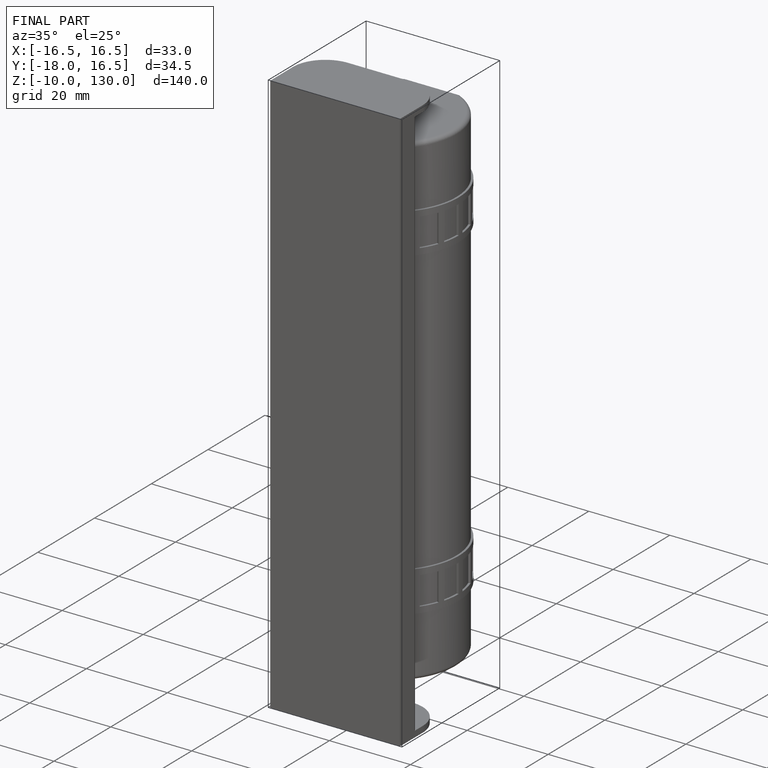
[diagram: finished part — iso view with bounding-box wireframe]
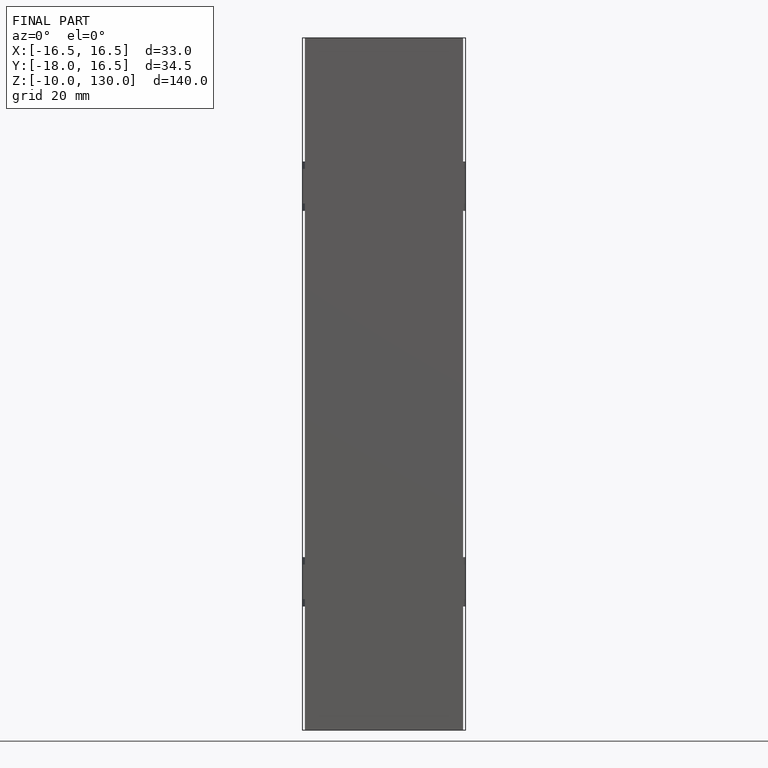
[diagram: finished part — front view with bounding-box wireframe]
